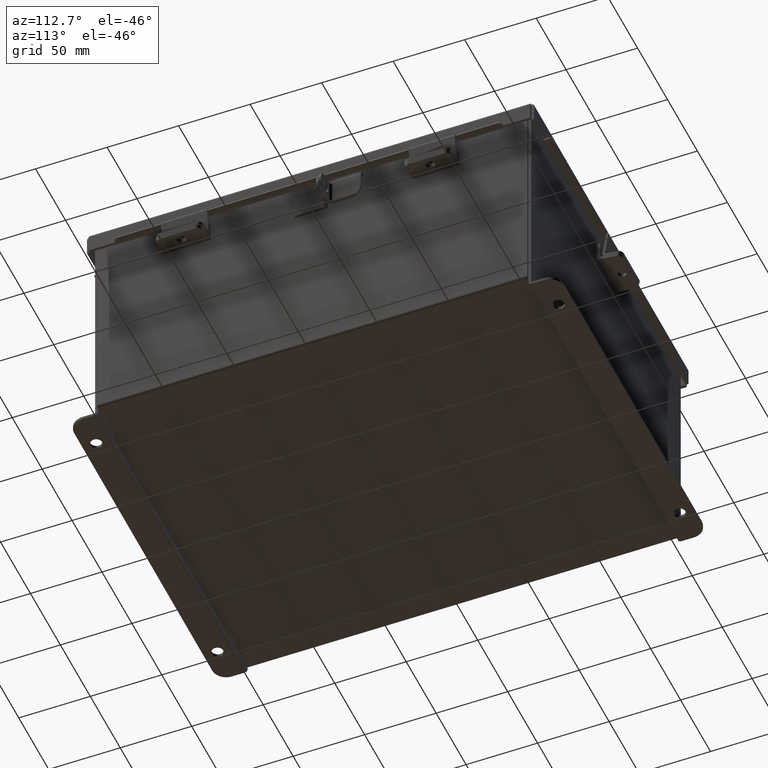
[diagram: clean part render]
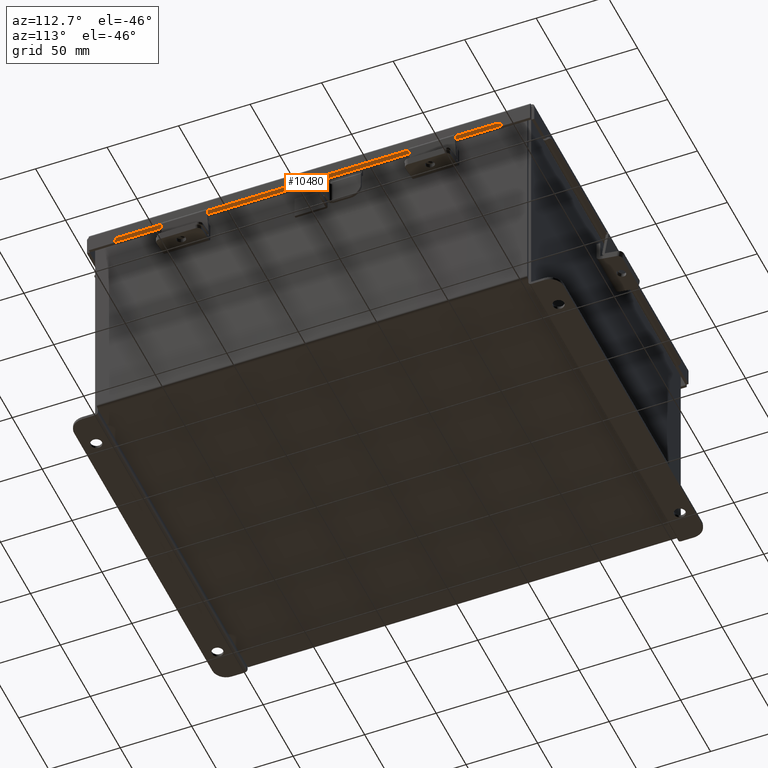
[diagram: same view with one face highlighted and labeled with its STEP entity id]
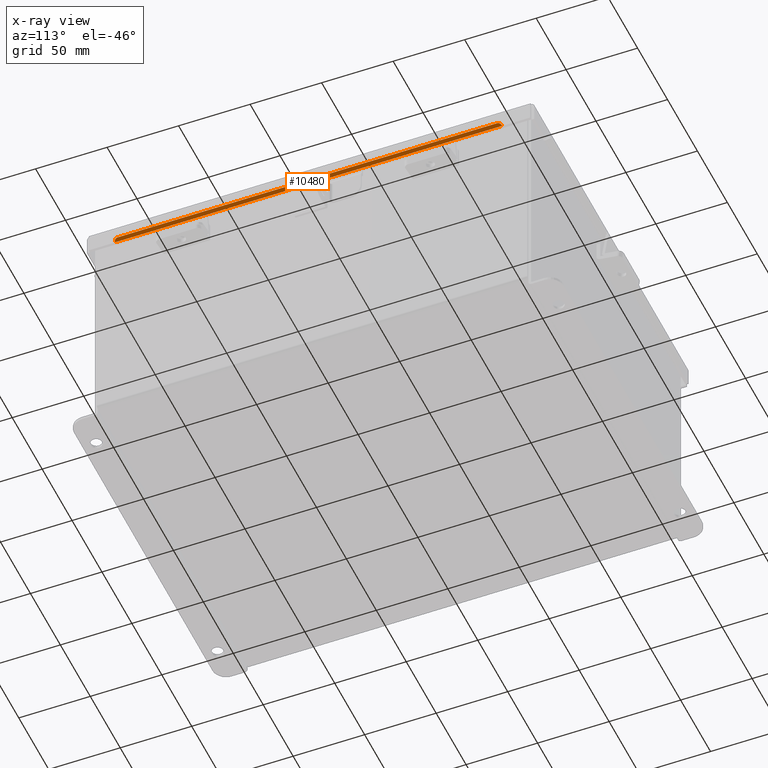
[diagram: x-ray of the same camera — body ghosted, the highlighted face saturated]
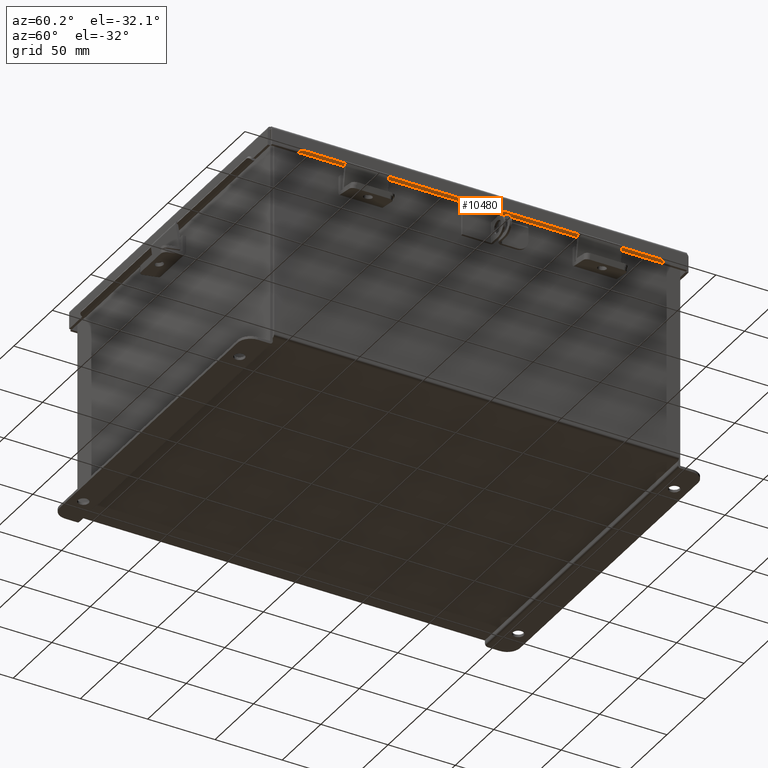
[diagram: same view with one face highlighted and labeled with its STEP entity id]
A machine part, auxiliary view. The second image highlights one B-rep face of the part: STEP entity #10480.
The next image is the same camera in x-ray: the body ghosted, the highlighted face saturated — about 0% of this face is hidden behind the body in this view.
A second angle (auxiliary view) of the same face is appended — the face is thin or edge-on in the first view.
In plain terms, the highlighted planar face has unit normal (-0.5, -0, 0.866).
Its self-contained STEP definition (entity closure, byte-faithful):
#271 = ORIENTED_EDGE ( 'NONE', *, *, #2501, .T. ) ;
#788 = CARTESIAN_POINT ( 'NONE',  ( -5.298056350946112000, 5.224478932188135100, 0.4916841953253943700 ) ) ;
#1063 = EDGE_CURVE ( 'NONE', #17289, #3296, #16267, .T. ) ;
#1148 = PLANE ( 'NONE',  #6136 ) ;
#1459 = CARTESIAN_POINT ( 'NONE',  ( -5.211453810567669500, 5.324478932188136500, 0.5416841953253941400 ) ) ;
#1700 = CIRCLE ( 'NONE', #10796, 0.09999999999999986700 ) ;
#1988 = CARTESIAN_POINT ( 'NONE',  ( -5.207100000000003200, -5.324478932188134700, 0.5441978690286367600 ) ) ;
#2067 = CARTESIAN_POINT ( 'NONE',  ( -5.207100000000003200, -3.261131327699497500E-016, 0.5441978690286367600 ) ) ;
#2331 = CARTESIAN_POINT ( 'NONE',  ( -5.211453810567668700, 5.224478932188135100, 0.5416841953253945800 ) ) ;
#2501 = EDGE_CURVE ( 'NONE', #4016, #6971, #6793, .T. ) ;
#2824 = VECTOR ( 'NONE', #10293, 39.37007874015748900 ) ;
#3296 = VERTEX_POINT ( 'NONE', #1988 ) ;
#3894 = DIRECTION ( 'NONE',  ( -0.8660254037844374900, 0.0000000000000000000, -0.5000000000000020000 ) ) ;
#4016 = VERTEX_POINT ( 'NONE', #1459 ) ;
#4380 = CARTESIAN_POINT ( 'NONE',  ( -5.211453810567668700, -5.224478932188135100, 0.5416841953253944700 ) ) ;
#4416 = CARTESIAN_POINT ( 'NONE',  ( -5.193600000000001800, -5.324478932188134700, 0.5519920976626971900 ) ) ;
#5319 = AXIS2_PLACEMENT_3D ( 'NONE', #2331, #15269, #15185 ) ;
#5453 = VECTOR ( 'NONE', #15392, 39.37007874015748100 ) ;
#5771 = DIRECTION ( 'NONE',  ( -0.8660254037844370400, 0.0000000000000000000, -0.5000000000000028900 ) ) ;
#5948 = VERTEX_POINT ( 'NONE', #12216 ) ;
#6136 = AXIS2_PLACEMENT_3D ( 'NONE', #10697, #12100, #3894 ) ;
#6377 = DIRECTION ( 'NONE',  ( -0.0000000000000000000, -1.000000000000000000, -0.0000000000000000000 ) ) ;
#6793 = CIRCLE ( 'NONE', #5319, 0.09999999999999986700 ) ;
#6916 = CARTESIAN_POINT ( 'NONE',  ( -5.211453810567668700, -5.324478932188134700, 0.5416841953253944700 ) ) ;
#6971 = VERTEX_POINT ( 'NONE', #788 ) ;
#6996 = ORIENTED_EDGE ( 'NONE', *, *, #12203, .T. ) ;
#7616 = CARTESIAN_POINT ( 'NONE',  ( -5.298056350946112000, 5.324478932188135600, 0.4916841953253943700 ) ) ;
#8780 = ORIENTED_EDGE ( 'NONE', *, *, #14170, .T. ) ;
#9256 = VECTOR ( 'NONE', #6377, 39.37007874015748100 ) ;
#9298 = VERTEX_POINT ( 'NONE', #6916 ) ;
#10074 = LINE ( 'NONE', #7616, #2824 ) ;
#10293 = DIRECTION ( 'NONE',  ( -0.8660254037844362700, -9.059668427480828900E-015, -0.5000000000000037700 ) ) ;
#10480 = ADVANCED_FACE ( 'NONE', ( #14870 ), #1148, .F. ) ;
#10623 = EDGE_CURVE ( 'NONE', #9298, #3296, #13189, .T. ) ;
#10697 = CARTESIAN_POINT ( 'NONE',  ( -1.537419589632089900, 0.0000000000000000000, 2.662888841794459200 ) ) ;
#10781 = ORIENTED_EDGE ( 'NONE', *, *, #10623, .T. ) ;
#10796 = AXIS2_PLACEMENT_3D ( 'NONE', #4380, #13963, #5771 ) ;
#10887 = EDGE_CURVE ( 'NONE', #6971, #5948, #12958, .T. ) ;
#12100 = DIRECTION ( 'NONE',  ( 0.5000000000000020000, 0.0000000000000000000, -0.8660254037844374900 ) ) ;
#12203 = EDGE_CURVE ( 'NONE', #17289, #4016, #10074, .T. ) ;
#12216 = CARTESIAN_POINT ( 'NONE',  ( -5.298056350946112000, -5.224478932188135100, 0.4916841953253943700 ) ) ;
#12597 = VECTOR ( 'NONE', #16751, 39.37007874015748100 ) ;
#12653 = ORIENTED_EDGE ( 'NONE', *, *, #10887, .T. ) ;
#12958 = LINE ( 'NONE', #17345, #9256 ) ;
#13189 = LINE ( 'NONE', #4416, #5453 ) ;
#13218 = EDGE_LOOP ( 'NONE', ( #12653, #8780, #10781, #14945, #6996, #271 ) ) ;
#13963 = DIRECTION ( 'NONE',  ( -0.5000000000000020000, -0.0000000000000000000, 0.8660254037844374900 ) ) ;
#14170 = EDGE_CURVE ( 'NONE', #5948, #9298, #1700, .T. ) ;
#14495 = CARTESIAN_POINT ( 'NONE',  ( -5.207100000000003200, 5.324478932188135600, 0.5441978690286369800 ) ) ;
#14870 = FACE_OUTER_BOUND ( 'NONE', #13218, .T. ) ;
#14945 = ORIENTED_EDGE ( 'NONE', *, *, #1063, .F. ) ;
#15185 = DIRECTION ( 'NONE',  ( -0.8660254037844370400, 0.0000000000000000000, -0.5000000000000028900 ) ) ;
#15269 = DIRECTION ( 'NONE',  ( -0.5000000000000020000, -0.0000000000000000000, 0.8660254037844374900 ) ) ;
#15392 = DIRECTION ( 'NONE',  ( 0.8660254037844374900, -0.0000000000000000000, 0.5000000000000020000 ) ) ;
#16267 = LINE ( 'NONE', #2067, #12597 ) ;
#16751 = DIRECTION ( 'NONE',  ( 6.665017718884685800E-017, -1.000000000000000000, 3.848049774151719400E-017 ) ) ;
#17289 = VERTEX_POINT ( 'NONE', #14495 ) ;
#17345 = CARTESIAN_POINT ( 'NONE',  ( -5.298056350946112000, -5.324478932188134700, 0.4916841953253943700 ) ) ;